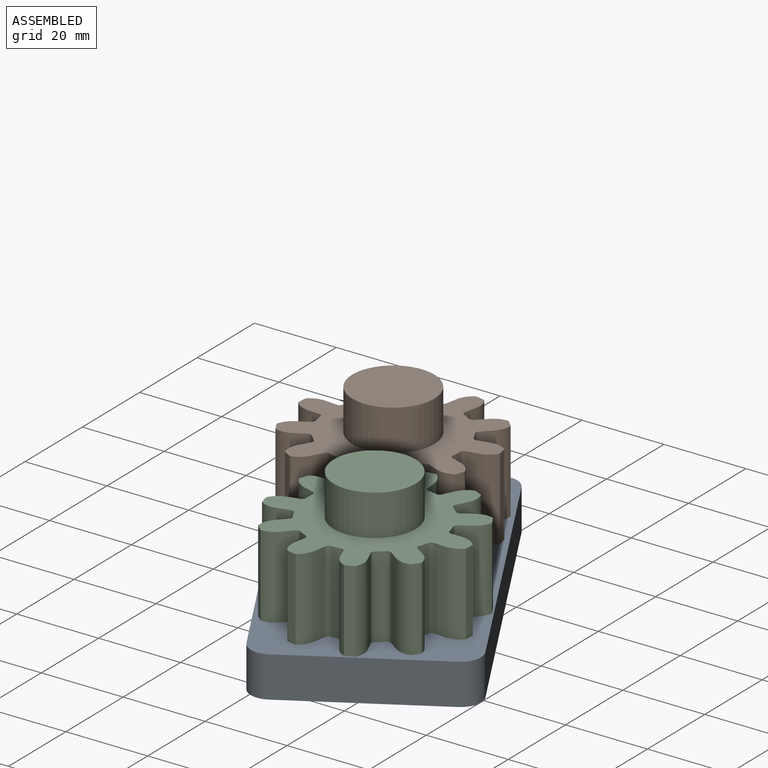
[diagram: assembled view]
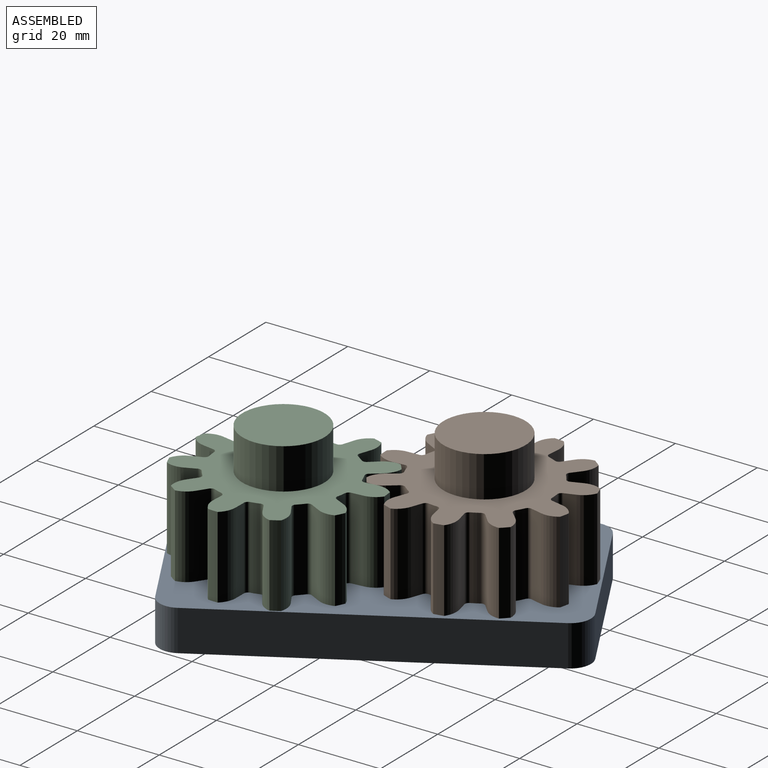
[diagram: assembled view, second angle]
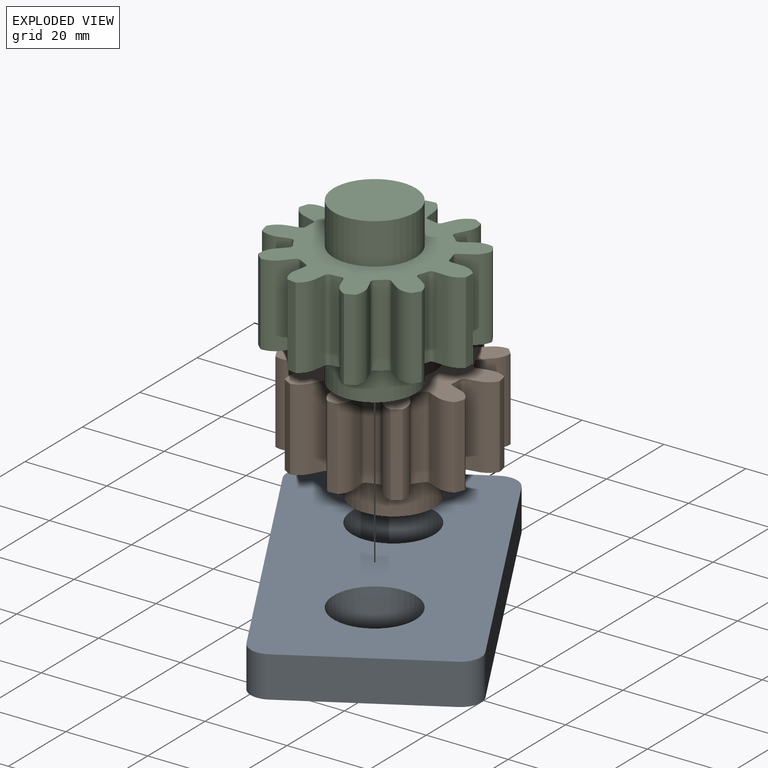
[diagram: exploded view]
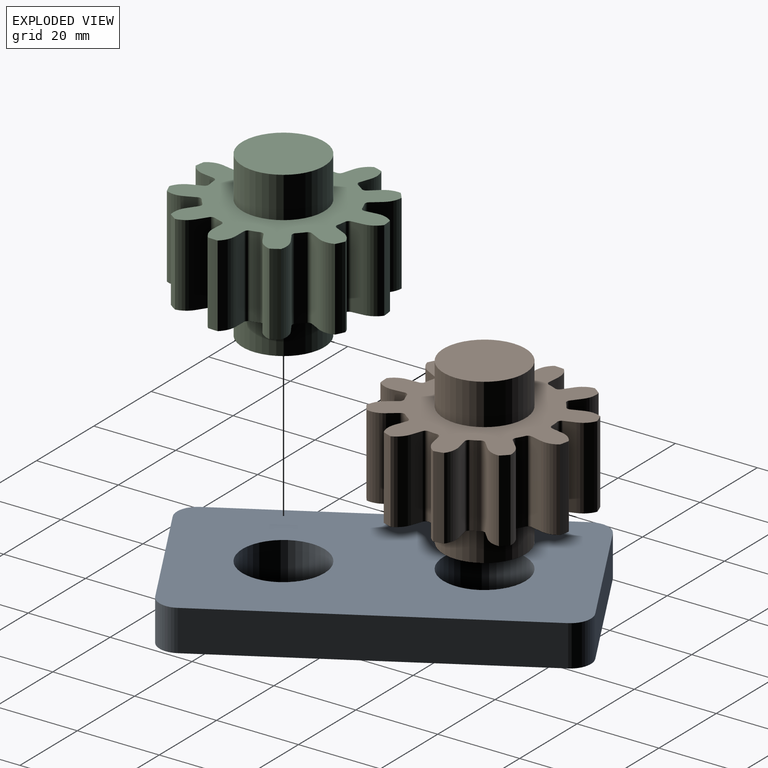
[diagram: exploded view, second angle]
ASSEMBLY  parts=3 mates=2
PART A: 12 faces, bbox 48x88.4x10 mm
  f0: plane 88.4x48mm, normal (0,0,-1), area 3593.4mm2, adj f1,f3,f4,f5,f6,f7,f8,f9
  f1: plane 78.4x10mm, normal (-1,0,0), area 784mm2, adj f0,f2,f8,f9
  f2: plane 88.4x48mm, normal (0,0,1), area 3593.4mm2, adj f1,f3,f4,f5,f6,f7,f8,f9
  f3: plane 38x10mm, normal (0,1,0), area 380mm2, adj f0,f2,f8,f10
  f4: plane 38x10mm, normal (0,-1,0), area 380mm2, adj f0,f2,f9,f11
  f5: plane 78.4x10mm, normal (1,0,0), area 784mm2, adj f0,f2,f10,f11
  f6: cylinder r=10mm len=20mm, axis (0,0,1), area 628.3mm2, adj f0,f2
  f7: cylinder r=10mm len=20mm, axis (0,0,1), area 628.3mm2, adj f0,f2
  f8: cylinder r=5mm len=10mm, axis (0,0,-1), area 78.5mm2, adj f0,f1,f2,f3
  f9: cylinder r=5mm len=10mm, axis (0,0,1), area 78.5mm2, adj f0,f1,f2,f4
  f10: cylinder r=5mm len=10mm, axis (0,0,1), area 78.5mm2, adj f0,f2,f3,f5
  f11: cylinder r=5mm len=10mm, axis (0,0,-1), area 78.5mm2, adj f0,f2,f4,f5
PART B: 94 faces, bbox 46.8x47x40 mm
  f0: cylinder r=16.36mm len=20mm, axis (0,0,-1), area 42.7mm2, adj f11,f12,f81,f89
  f1: cylinder r=16.36mm len=20mm, axis (0,0,-1), area 42.7mm2, adj f11,f12,f74,f82
  f2: cylinder r=16.36mm len=20mm, axis (0,0,-1), area 42.7mm2, adj f11,f12,f67,f75
  f3: cylinder r=16.36mm len=20mm, axis (0,0,-1), area 42.7mm2, adj f11,f12,f60,f68
  f4: cylinder r=16.36mm len=20mm, axis (0,0,-1), area 42.7mm2, adj f11,f12,f53,f61
  f5: cylinder r=16.36mm len=20mm, axis (0,0,-1), area 42.7mm2, adj f11,f12,f46,f54
  f6: cylinder r=16.36mm len=20mm, axis (0,0,-1), area 42.7mm2, adj f11,f12,f39,f47
  f7: cylinder r=16.36mm len=20mm, axis (0,0,-1), area 42.7mm2, adj f11,f12,f32,f40
  f8: cylinder r=16.36mm len=20mm, axis (0,0,-1), area 42.7mm2, adj f11,f12,f25,f33
  f9: cylinder r=16.36mm len=20mm, axis (0,0,-1), area 42.7mm2, adj f11,f12,f18,f26
  f10: cylinder r=16.36mm len=20mm, axis (0,0,-1), area 42.7mm2, adj f11,f12,f19,f88
  f11: plane 47.04x46.8mm, normal (0,0,1), area 944.9mm2, adj f0,f1,f2,f3,f4,f5,f6,f7
  f12: plane 47.04x46.8mm, normal (0,0,-1), area 944.9mm2, adj f0,f1,f2,f3,f4,f5,f6,f7
  f13: cylinder r=23.64mm len=20mm, axis (0,0,-1), area 47.4mm2, adj f11,f12,f14,f16
  f14: cylinder r=5mm len=20mm, axis (0,0,-1), area 85.7mm2, adj f11,f12,f13,f15
  f15: plane 20x2.82mm, normal (-1,0.09,0), area 56.7mm2, adj f11,f12,f14,f18
  f16: cylinder r=5mm len=20mm, axis (0,0,-1), area 85.7mm2, adj f11,f12,f13,f17
  f17: plane 20x2.81mm, normal (0.99,-0.13,0), area 56.7mm2, adj f11,f12,f16,f19
  f18: cylinder r=1mm len=20mm, axis (0,0,-1), area 27.4mm2, adj f9,f11,f12,f15
  f19: cylinder r=1mm len=20mm, axis (0,0,-1), area 27.4mm2, adj f10,f11,f12,f17
  f20: cylinder r=23.64mm len=20mm, axis (0,0,-1), area 47.4mm2, adj f11,f12,f21,f23
  f21: cylinder r=5mm len=20mm, axis (0,0,-1), area 85.7mm2, adj f11,f12,f20,f22
  f22: plane 20x2.51mm, normal (-0.89,-0.46,0), area 56.7mm2, adj f11,f12,f21,f25
  f23: cylinder r=5mm len=20mm, axis (0,0,-1), area 85.7mm2, adj f11,f12,f20,f24
  f24: plane 20x2.56mm, normal (0.9,0.43,0), area 56.7mm2, adj f11,f12,f23,f26
  f25: cylinder r=1mm len=20mm, axis (0,0,-1), area 27.4mm2, adj f8,f11,f12,f22
  f26: cylinder r=1mm len=20mm, axis (0,0,-1), area 27.4mm2, adj f9,f11,f12,f24
  f27: cylinder r=23.64mm len=20mm, axis (0,0,-1), area 47.4mm2, adj f11,f12,f28,f30
  f28: cylinder r=5mm len=20mm, axis (0,0,-1), area 85.7mm2, adj f11,f12,f27,f29
  f29: plane 20x2.46mm, normal (-0.5,-0.87,0), area 56.7mm2, adj f11,f12,f28,f32
  f30: cylinder r=5mm len=20mm, axis (0,0,-1), area 85.7mm2, adj f11,f12,f27,f31
  f31: plane 20x2.41mm, normal (0.53,0.85,0), area 56.7mm2, adj f11,f12,f30,f33
  f32: cylinder r=1mm len=20mm, axis (0,0,-1), area 27.4mm2, adj f7,f11,f12,f29
  f33: cylinder r=1mm len=20mm, axis (0,0,-1), area 27.4mm2, adj f8,f11,f12,f31
  f34: cylinder r=23.64mm len=20mm, axis (0,0,-1), area 47.4mm2, adj f11,f12,f35,f37
  f35: cylinder r=5mm len=20mm, axis (0,0,-1), area 85.7mm2, adj f11,f12,f34,f36
  f36: plane 20x2.83mm, normal (0.05,-1,0), area 56.7mm2, adj f11,f12,f35,f39
  f37: cylinder r=5mm len=20mm, axis (0,0,-1), area 85.7mm2, adj f11,f12,f34,f38
  f38: plane 20x2.84mm, normal (-0.02,1,0), area 56.7mm2, adj f11,f12,f37,f40
  f39: cylinder r=1mm len=20mm, axis (0,0,-1), area 27.4mm2, adj f6,f11,f12,f36
  f40: cylinder r=1mm len=20mm, axis (0,0,-1), area 27.4mm2, adj f7,f11,f12,f38
  f41: cylinder r=23.64mm len=20mm, axis (0,0,-1), area 47.4mm2, adj f11,f12,f42,f44
  f42: cylinder r=5mm len=20mm, axis (0,0,-1), area 85.7mm2, adj f11,f12,f41,f43
  f43: plane 20x2.3mm, normal (0.58,-0.81,0), area 56.7mm2, adj f11,f12,f42,f46
  f44: cylinder r=5mm len=20mm, axis (0,0,-1), area 85.7mm2, adj f11,f12,f41,f45
  f45: plane 20x2.36mm, normal (-0.56,0.83,0), area 56.7mm2, adj f11,f12,f44,f47
  f46: cylinder r=1mm len=20mm, axis (0,0,-1), area 27.4mm2, adj f5,f11,f12,f43
  f47: cylinder r=1mm len=20mm, axis (0,0,-1), area 27.4mm2, adj f6,f11,f12,f45
  f48: cylinder r=23.64mm len=20mm, axis (0,0,-1), area 47.4mm2, adj f11,f12,f49,f51
  f49: cylinder r=5mm len=20mm, axis (0,0,-1), area 85.7mm2, adj f11,f12,f48,f50
  f50: plane 20x2.64mm, normal (0.93,-0.37,0), area 56.7mm2, adj f11,f12,f49,f53
  f51: cylinder r=5mm len=20mm, axis (0,0,-1), area 85.7mm2, adj f11,f12,f48,f52
  f52: plane 20x2.6mm, normal (-0.92,0.4,0), area 56.7mm2, adj f11,f12,f51,f54
  f53: cylinder r=1mm len=20mm, axis (0,0,-1), area 27.4mm2, adj f4,f11,f12,f50
  f54: cylinder r=1mm len=20mm, axis (0,0,-1), area 27.4mm2, adj f5,f11,f12,f52
  f55: cylinder r=23.64mm len=20mm, axis (0,0,-1), area 47.4mm2, adj f11,f12,f56,f58
  f56: cylinder r=5mm len=20mm, axis (0,0,-1), area 85.7mm2, adj f11,f12,f55,f57
  f57: plane 20x2.78mm, normal (0.98,0.19,0), area 56.7mm2, adj f11,f12,f56,f60
  f58: cylinder r=5mm len=20mm, axis (0,0,-1), area 85.7mm2, adj f11,f12,f55,f59
  f59: plane 20x2.8mm, normal (-0.99,-0.16,0), area 56.7mm2, adj f11,f12,f58,f61
  f60: cylinder r=1mm len=20mm, axis (0,0,-1), area 27.4mm2, adj f3,f11,f12,f57
  f61: cylinder r=1mm len=20mm, axis (0,0,-1), area 27.4mm2, adj f4,f11,f12,f59
  f62: cylinder r=23.64mm len=20mm, axis (0,0,-1), area 47.4mm2, adj f11,f12,f63,f65
  f63: cylinder r=5mm len=20mm, axis (0,0,-1), area 85.7mm2, adj f11,f12,f62,f64
  f64: plane 20x2.04mm, normal (0.72,0.69,0), area 56.7mm2, adj f11,f12,f63,f67
  f65: cylinder r=5mm len=20mm, axis (0,0,-1), area 85.7mm2, adj f11,f12,f62,f66
  f66: plane 20x2.11mm, normal (-0.74,-0.67,0), area 56.7mm2, adj f11,f12,f65,f68
  f67: cylinder r=1mm len=20mm, axis (0,0,-1), area 27.4mm2, adj f2,f11,f12,f64
  f68: cylinder r=1mm len=20mm, axis (0,0,-1), area 27.4mm2, adj f3,f11,f12,f66
  f69: cylinder r=23.64mm len=20mm, axis (0,0,-1), area 47.4mm2, adj f11,f12,f70,f72
  f70: cylinder r=5mm len=20mm, axis (0,0,-1), area 85.7mm2, adj f11,f12,f69,f71
  f71: plane 20x2.76mm, normal (0.23,0.97,0), area 56.7mm2, adj f11,f12,f70,f74
  f72: cylinder r=5mm len=20mm, axis (0,0,-1), area 85.7mm2, adj f11,f12,f69,f73
  f73: plane 20x2.73mm, normal (-0.26,-0.96,0), area 56.7mm2, adj f11,f12,f72,f75
  f74: cylinder r=1mm len=20mm, axis (0,0,-1), area 27.4mm2, adj f1,f11,f12,f71
  f75: cylinder r=1mm len=20mm, axis (0,0,-1), area 27.4mm2, adj f2,f11,f12,f73
  f76: cylinder r=23.64mm len=20mm, axis (0,0,-1), area 47.4mm2, adj f11,f12,f77,f79
  f77: cylinder r=5mm len=20mm, axis (0,0,-1), area 85.7mm2, adj f11,f12,f76,f78
  f78: plane 20x2.68mm, normal (-0.33,0.94,0), area 56.7mm2, adj f11,f12,f77,f81
  f79: cylinder r=5mm len=20mm, axis (0,0,-1), area 85.7mm2, adj f11,f12,f76,f80
  f80: plane 20x2.71mm, normal (0.3,-0.95,0), area 56.7mm2, adj f11,f12,f79,f82
  f81: cylinder r=1mm len=20mm, axis (0,0,-1), area 27.4mm2, adj f0,f11,f12,f78
  f82: cylinder r=1mm len=20mm, axis (0,0,-1), area 27.4mm2, adj f1,f11,f12,f80
  f83: cylinder r=23.64mm len=20mm, axis (0,0,-1), area 47.4mm2, adj f11,f12,f84,f86
  f84: cylinder r=5mm len=20mm, axis (0,0,-1), area 85.7mm2, adj f11,f12,f83,f85
  f85: plane 20x2.24mm, normal (-0.79,0.61,0), area 56.7mm2, adj f11,f12,f84,f88
  f86: cylinder r=5mm len=20mm, axis (0,0,-1), area 85.7mm2, adj f11,f12,f83,f87
  f87: plane 20x2.18mm, normal (0.77,-0.64,0), area 56.7mm2, adj f11,f12,f86,f89
  f88: cylinder r=1mm len=20mm, axis (0,0,-1), area 27.4mm2, adj f10,f11,f12,f85
  f89: cylinder r=1mm len=20mm, axis (0,0,-1), area 27.4mm2, adj f0,f11,f12,f87
  f90: cylinder r=10mm len=20mm, axis (0,0,-1), area 628.3mm2, adj f11,f91
  f91: plane 20x20mm, normal (0,0,1), area 314.2mm2, adj f90
  f92: cylinder r=10mm len=20mm, axis (0,0,1), area 628.3mm2, adj f12,f93
  f93: plane 20x20mm, normal (0,0,-1), area 314.2mm2, adj f92
PART C: same geometry as B
PLACE A rot(axis=(0,0,1),29.7deg) t=(-48.36,-22.42,-23.05)mm
PLACE B rot(axis=(0,0,-1),137.2deg) t=(-48.36,-22.42,6.95)mm
PLACE C rot(axis=(0,0,1),78.1deg) t=(-28.34,-57.51,6.95)mm
MATE revolute C.f90 <-> A.f7  axis (0,0,-1) through (-28.34,-57.51,-3.05)mm
MATE revolute B.f90 <-> A.f6  axis (0,0,-1) through (-48.36,-22.42,-3.05)mm
